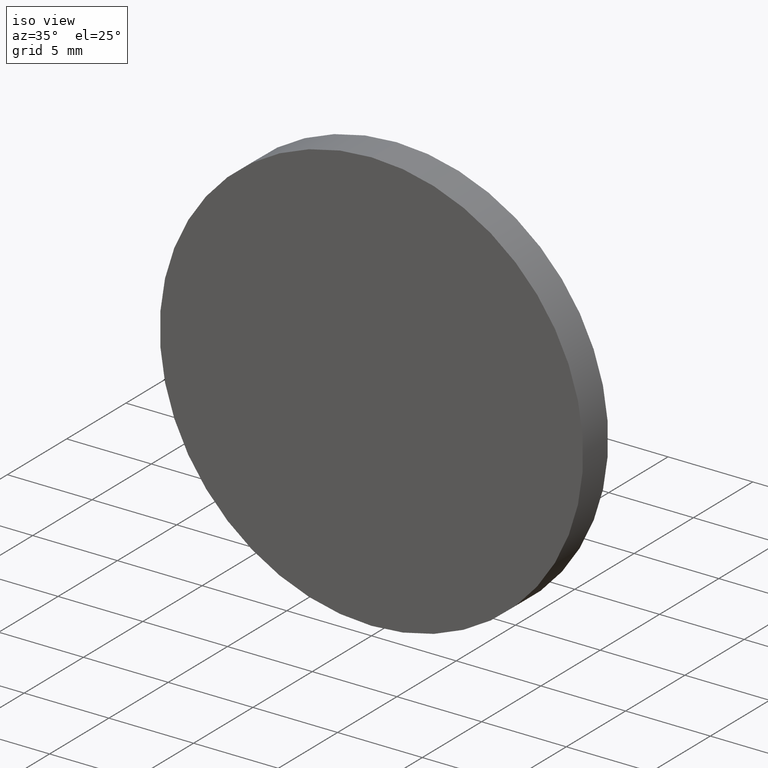
[diagram: clean part render]
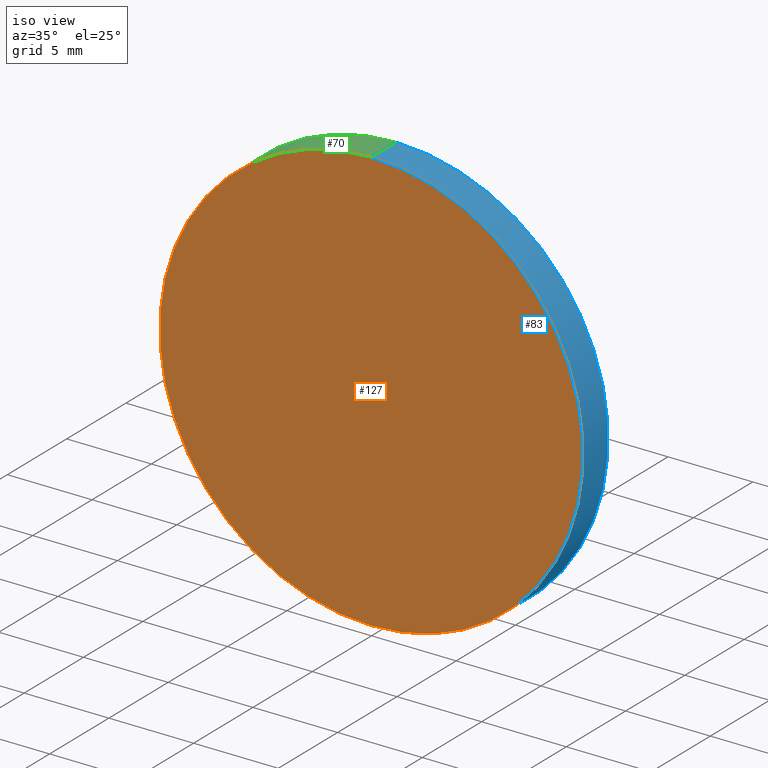
[diagram: same view with three faces highlighted in distinct colors, each labeled with its STEP entity id]
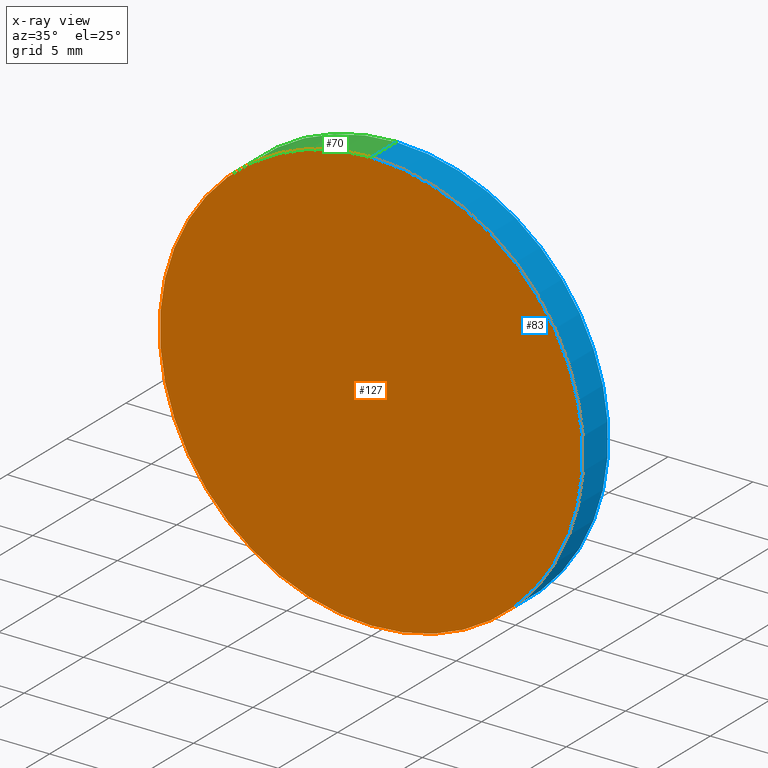
[diagram: x-ray of the same camera — body ghosted, the three highlighted faces saturated]
A machine part, iso view with three faces highlighted in distinct colors.
The next image is the same camera in x-ray (body ghosted, the three faces saturated) — at least one of them is partly hidden behind the body in this view.
Their STEP definitions:

[orange] entity #127 — the highlighted planar face has unit normal (0, 1, 0).
#1 = VERTEX_POINT ( 'NONE', #68 ) ;
#2 = CARTESIAN_POINT ( 'NONE',  ( 0.0000000000000000000, 0.0000000000000000000, 0.0000000000000000000 ) ) ;
#5 = ORIENTED_EDGE ( 'NONE', *, *, #85, .F. ) ;
#6 = AXIS2_PLACEMENT_3D ( 'NONE', #2, #91, #129 ) ;
#7 = CARTESIAN_POINT ( 'NONE',  ( 1.530808498934191500E-015, 0.0000000000000000000, 12.50000000000000000 ) ) ;
#27 = PLANE ( 'NONE',  #6 ) ;
#51 = AXIS2_PLACEMENT_3D ( 'NONE', #128, #78, #81 ) ;
#64 = DIRECTION ( 'NONE',  ( 0.0000000000000000000, 1.000000000000000000, 0.0000000000000000000 ) ) ;
#68 = CARTESIAN_POINT ( 'NONE',  ( 0.0000000000000000000, 0.0000000000000000000, -12.50000000000000000 ) ) ;
#69 = DIRECTION ( 'NONE',  ( 0.0000000000000000000, 0.0000000000000000000, 1.000000000000000000 ) ) ;
#73 = FACE_OUTER_BOUND ( 'NONE', #87, .T. ) ;
#76 = CIRCLE ( 'NONE', #107, 12.50000000000000000 ) ;
#78 = DIRECTION ( 'NONE',  ( 0.0000000000000000000, 1.000000000000000000, 0.0000000000000000000 ) ) ;
#79 = CARTESIAN_POINT ( 'NONE',  ( 0.0000000000000000000, 0.0000000000000000000, 0.0000000000000000000 ) ) ;
#81 = DIRECTION ( 'NONE',  ( 0.0000000000000000000, 0.0000000000000000000, 1.000000000000000000 ) ) ;
#85 = EDGE_CURVE ( 'NONE', #1, #112, #132, .T. ) ;
#87 = EDGE_LOOP ( 'NONE', ( #5, #90 ) ) ;
#90 = ORIENTED_EDGE ( 'NONE', *, *, #130, .F. ) ;
#91 = DIRECTION ( 'NONE',  ( 0.0000000000000000000, 1.000000000000000000, 0.0000000000000000000 ) ) ;
#107 = AXIS2_PLACEMENT_3D ( 'NONE', #79, #64, #69 ) ;
#112 = VERTEX_POINT ( 'NONE', #7 ) ;
#127 = ADVANCED_FACE ( 'NONE', ( #73 ), #27, .F. ) ;
#128 = CARTESIAN_POINT ( 'NONE',  ( 0.0000000000000000000, 0.0000000000000000000, 0.0000000000000000000 ) ) ;
#129 = DIRECTION ( 'NONE',  ( 0.0000000000000000000, -0.0000000000000000000, 1.000000000000000000 ) ) ;
#130 = EDGE_CURVE ( 'NONE', #112, #1, #76, .T. ) ;
#132 = CIRCLE ( 'NONE', #51, 12.50000000000000000 ) ;

[blue] entity #83 — the highlighted cylindrical surface (partial cylindrical patch) has radius 12.5 mm, axis along (-0, -1, -0).
#1 = VERTEX_POINT ( 'NONE', #68 ) ;
#7 = CARTESIAN_POINT ( 'NONE',  ( 1.530808498934191500E-015, 0.0000000000000000000, 12.50000000000000000 ) ) ;
#17 = DIRECTION ( 'NONE',  ( 0.0000000000000000000, 0.0000000000000000000, -1.000000000000000000 ) ) ;
#19 = CARTESIAN_POINT ( 'NONE',  ( 0.0000000000000000000, 2.109999999999999900, -12.50000000000000000 ) ) ;
#21 = CIRCLE ( 'NONE', #77, 12.50000000000000000 ) ;
#23 = ORIENTED_EDGE ( 'NONE', *, *, #120, .F. ) ;
#30 = CARTESIAN_POINT ( 'NONE',  ( 0.0000000000000000000, 2.109999999999999900, -12.50000000000000000 ) ) ;
#33 = VERTEX_POINT ( 'NONE', #19 ) ;
#37 = CARTESIAN_POINT ( 'NONE',  ( 1.530808498934191500E-015, 2.109999999999999900, 12.50000000000000000 ) ) ;
#38 = EDGE_CURVE ( 'NONE', #108, #112, #46, .T. ) ;
#42 = LINE ( 'NONE', #30, #99 ) ;
#46 = LINE ( 'NONE', #37, #101 ) ;
#48 = DIRECTION ( 'NONE',  ( -0.0000000000000000000, -1.000000000000000000, -0.0000000000000000000 ) ) ;
#49 = DIRECTION ( 'NONE',  ( -0.0000000000000000000, -1.000000000000000000, -0.0000000000000000000 ) ) ;
#60 = ORIENTED_EDGE ( 'NONE', *, *, #38, .T. ) ;
#62 = DIRECTION ( 'NONE',  ( 0.0000000000000000000, 0.0000000000000000000, 1.000000000000000000 ) ) ;
#64 = DIRECTION ( 'NONE',  ( 0.0000000000000000000, 1.000000000000000000, 0.0000000000000000000 ) ) ;
#65 = EDGE_LOOP ( 'NONE', ( #23, #60, #139, #80 ) ) ;
#68 = CARTESIAN_POINT ( 'NONE',  ( 0.0000000000000000000, 0.0000000000000000000, -12.50000000000000000 ) ) ;
#69 = DIRECTION ( 'NONE',  ( 0.0000000000000000000, 0.0000000000000000000, 1.000000000000000000 ) ) ;
#75 = CARTESIAN_POINT ( 'NONE',  ( 0.0000000000000000000, 2.109999999999999900, 0.0000000000000000000 ) ) ;
#76 = CIRCLE ( 'NONE', #107, 12.50000000000000000 ) ;
#77 = AXIS2_PLACEMENT_3D ( 'NONE', #113, #82, #62 ) ;
#79 = CARTESIAN_POINT ( 'NONE',  ( 0.0000000000000000000, 0.0000000000000000000, 0.0000000000000000000 ) ) ;
#80 = ORIENTED_EDGE ( 'NONE', *, *, #136, .F. ) ;
#82 = DIRECTION ( 'NONE',  ( 0.0000000000000000000, 1.000000000000000000, 0.0000000000000000000 ) ) ;
#83 = ADVANCED_FACE ( 'NONE', ( #133 ), #97, .T. ) ;
#89 = AXIS2_PLACEMENT_3D ( 'NONE', #75, #49, #17 ) ;
#97 = CYLINDRICAL_SURFACE ( 'NONE', #89, 12.50000000000000000 ) ;
#99 = VECTOR ( 'NONE', #48, 1000.000000000000000 ) ;
#101 = VECTOR ( 'NONE', #117, 1000.000000000000000 ) ;
#107 = AXIS2_PLACEMENT_3D ( 'NONE', #79, #64, #69 ) ;
#108 = VERTEX_POINT ( 'NONE', #123 ) ;
#112 = VERTEX_POINT ( 'NONE', #7 ) ;
#113 = CARTESIAN_POINT ( 'NONE',  ( 0.0000000000000000000, 2.109999999999999900, 0.0000000000000000000 ) ) ;
#117 = DIRECTION ( 'NONE',  ( -0.0000000000000000000, -1.000000000000000000, -0.0000000000000000000 ) ) ;
#120 = EDGE_CURVE ( 'NONE', #108, #33, #21, .T. ) ;
#123 = CARTESIAN_POINT ( 'NONE',  ( 1.530808498934191500E-015, 2.109999999999999900, 12.50000000000000000 ) ) ;
#130 = EDGE_CURVE ( 'NONE', #112, #1, #76, .T. ) ;
#133 = FACE_OUTER_BOUND ( 'NONE', #65, .T. ) ;
#136 = EDGE_CURVE ( 'NONE', #33, #1, #42, .T. ) ;
#139 = ORIENTED_EDGE ( 'NONE', *, *, #130, .T. ) ;

[green] entity #70 — the highlighted cylindrical surface (partial cylindrical patch) has radius 12.5 mm, axis along (-0, -1, -0).
#1 = VERTEX_POINT ( 'NONE', #68 ) ;
#4 = DIRECTION ( 'NONE',  ( 0.0000000000000000000, 1.000000000000000000, 0.0000000000000000000 ) ) ;
#7 = CARTESIAN_POINT ( 'NONE',  ( 1.530808498934191500E-015, 0.0000000000000000000, 12.50000000000000000 ) ) ;
#12 = DIRECTION ( 'NONE',  ( -0.0000000000000000000, -1.000000000000000000, -0.0000000000000000000 ) ) ;
#15 = CYLINDRICAL_SURFACE ( 'NONE', #116, 12.50000000000000000 ) ;
#19 = CARTESIAN_POINT ( 'NONE',  ( 0.0000000000000000000, 2.109999999999999900, -12.50000000000000000 ) ) ;
#29 = ORIENTED_EDGE ( 'NONE', *, *, #136, .T. ) ;
#30 = CARTESIAN_POINT ( 'NONE',  ( 0.0000000000000000000, 2.109999999999999900, -12.50000000000000000 ) ) ;
#33 = VERTEX_POINT ( 'NONE', #19 ) ;
#37 = CARTESIAN_POINT ( 'NONE',  ( 1.530808498934191500E-015, 2.109999999999999900, 12.50000000000000000 ) ) ;
#38 = EDGE_CURVE ( 'NONE', #108, #112, #46, .T. ) ;
#40 = DIRECTION ( 'NONE',  ( 0.0000000000000000000, 0.0000000000000000000, -1.000000000000000000 ) ) ;
#42 = LINE ( 'NONE', #30, #99 ) ;
#44 = CIRCLE ( 'NONE', #126, 12.50000000000000000 ) ;
#46 = LINE ( 'NONE', #37, #101 ) ;
#48 = DIRECTION ( 'NONE',  ( -0.0000000000000000000, -1.000000000000000000, -0.0000000000000000000 ) ) ;
#51 = AXIS2_PLACEMENT_3D ( 'NONE', #128, #78, #81 ) ;
#54 = ORIENTED_EDGE ( 'NONE', *, *, #92, .F. ) ;
#57 = ORIENTED_EDGE ( 'NONE', *, *, #38, .F. ) ;
#68 = CARTESIAN_POINT ( 'NONE',  ( 0.0000000000000000000, 0.0000000000000000000, -12.50000000000000000 ) ) ;
#70 = ADVANCED_FACE ( 'NONE', ( #71 ), #15, .T. ) ;
#71 = FACE_OUTER_BOUND ( 'NONE', #137, .T. ) ;
#78 = DIRECTION ( 'NONE',  ( 0.0000000000000000000, 1.000000000000000000, 0.0000000000000000000 ) ) ;
#81 = DIRECTION ( 'NONE',  ( 0.0000000000000000000, 0.0000000000000000000, 1.000000000000000000 ) ) ;
#85 = EDGE_CURVE ( 'NONE', #1, #112, #132, .T. ) ;
#92 = EDGE_CURVE ( 'NONE', #33, #108, #44, .T. ) ;
#99 = VECTOR ( 'NONE', #48, 1000.000000000000000 ) ;
#100 = CARTESIAN_POINT ( 'NONE',  ( 0.0000000000000000000, 2.109999999999999900, 0.0000000000000000000 ) ) ;
#101 = VECTOR ( 'NONE', #117, 1000.000000000000000 ) ;
#108 = VERTEX_POINT ( 'NONE', #123 ) ;
#111 = DIRECTION ( 'NONE',  ( 0.0000000000000000000, 0.0000000000000000000, 1.000000000000000000 ) ) ;
#112 = VERTEX_POINT ( 'NONE', #7 ) ;
#116 = AXIS2_PLACEMENT_3D ( 'NONE', #100, #12, #40 ) ;
#117 = DIRECTION ( 'NONE',  ( -0.0000000000000000000, -1.000000000000000000, -0.0000000000000000000 ) ) ;
#118 = ORIENTED_EDGE ( 'NONE', *, *, #85, .T. ) ;
#123 = CARTESIAN_POINT ( 'NONE',  ( 1.530808498934191500E-015, 2.109999999999999900, 12.50000000000000000 ) ) ;
#124 = CARTESIAN_POINT ( 'NONE',  ( 0.0000000000000000000, 2.109999999999999900, 0.0000000000000000000 ) ) ;
#126 = AXIS2_PLACEMENT_3D ( 'NONE', #124, #4, #111 ) ;
#128 = CARTESIAN_POINT ( 'NONE',  ( 0.0000000000000000000, 0.0000000000000000000, 0.0000000000000000000 ) ) ;
#132 = CIRCLE ( 'NONE', #51, 12.50000000000000000 ) ;
#136 = EDGE_CURVE ( 'NONE', #33, #1, #42, .T. ) ;
#137 = EDGE_LOOP ( 'NONE', ( #57, #54, #29, #118 ) ) ;